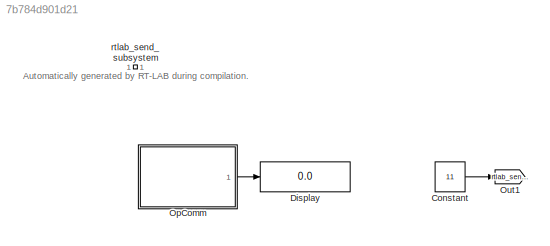
MODEL slx_7b784d901d21
KIND model
CONFIG AbsTol = auto
CONFIG EnableMultiTasking = off
CONFIG FixedStep = 0.001
CONFIG MaxStep = auto
CONFIG MinStep = auto
CONFIG RelTol = 1e-3
CONFIG SampleTimeConstraint = Unconstrained
CONFIG SolverName = ode4
CONFIG StartTime = 0.0
CONFIG StopTime = inf
WORKSPACE source: MATLAB code (in-file)
WORKSPACE code: addpath src\model
WORKSPACE code: addpath src\utils
WORKSPACE utils = StateMachineUtils
WORKSPACE utils = utils.loadEventsInAds('resources/tct/ALLEVENT.ADS')
WORKSPACE utils = utils.loadDisabledEventsInPdt('resources/tct/supervisor1/DATA_SIMSUP1_MG1.PDT')
WORKSPACE utils = utils.loadTransitionsInAds('resources/tct/supervisor1/SIMSUP1_MG1.ADS')
WORKSPACE encodedStates = StateEncoder.encode(utils.statesArray)
WORKSPACE transitions = utils.transitions
WORKSPACE allEvents = utils.eventsArray
BLOCK [Constant] Constant
  Value = 11
BLOCK [Display] Display
  Decimation = 1
  Ports = [1]
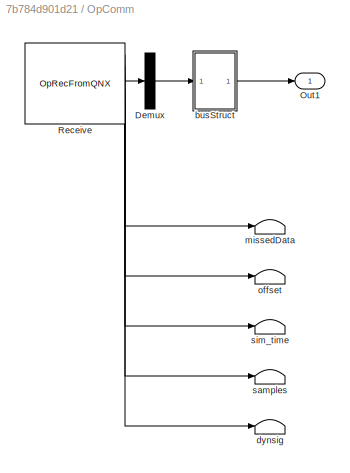
BLOCK [SubSystem] OpComm
  Ports = [0, 1]
  RequestExecContextInheritance = off
BLOCK [Demux] OpComm/Demux
  Outputs = [1]
  Ports = [1, 1]
BLOCK [Outport] OpComm/Out1
BLOCK [Reference] OpComm/Receive  REF=opal_lib/Communication/OpRecFromQNX
  Ports = [0, 6]
  SourceBlock = opal_lib/Communication/OpRecFromQNX
  SourceType = OPAL Receive Icon
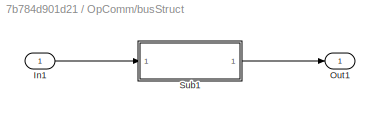
BLOCK [SubSystem] OpComm/busStruct
  Ports = [1, 1]
  RequestExecContextInheritance = off
BLOCK [Inport] OpComm/busStruct/In1
BLOCK [Outport] OpComm/busStruct/Out1
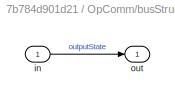
BLOCK [SubSystem] OpComm/busStruct/Sub1
  Ports = [1, 1]
  RequestExecContextInheritance = off
BLOCK [Inport] OpComm/busStruct/Sub1/in
BLOCK [Outport] OpComm/busStruct/Sub1/out
BLOCK [Terminator] OpComm/dynsig
BLOCK [Terminator] OpComm/missedData
BLOCK [Terminator] OpComm/offset
BLOCK [Terminator] OpComm/samples
BLOCK [Terminator] OpComm/sim_time
BLOCK [Goto] Out1
  GotoTag = rtlab_send_1
  TagVisibility = global
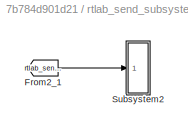
BLOCK [SubSystem] rtlab_send_subsystem
  Ports = []
  Priority = -100
  RequestExecContextInheritance = off
BLOCK [From] rtlab_send_subsystem/From2_1
  GotoTag = rtlab_send_1
  TagVisibility = global
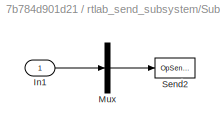
BLOCK [SubSystem] rtlab_send_subsystem/Subsystem2
  Ports = [1]
  RequestExecContextInheritance = off
BLOCK [Inport] rtlab_send_subsystem/Subsystem2/In1
  PortDimensions = 1
BLOCK [Mux] rtlab_send_subsystem/Subsystem2/Mux
  Inputs = 1
  Ports = [1, 1]
BLOCK [Reference] rtlab_send_subsystem/Subsystem2/Send2  REF=opal_lib/Communication/OpSendPar
ToQNX
  Ports = [1]
  SourceBlock = opal_lib/Communication/OpSendPar\nToQNX
  SourceType = OPAL Send Icon
ANNOTATION (root): Automatically generated by RT-LAB during compilation.
LINE Constant:1 -> Out1:1
LINE OpComm/Demux:1 -> OpComm/busStruct:1
LINE OpComm/Receive:1 -> OpComm/Demux:1
LINE OpComm/Receive:2 -> OpComm/missedData:1
LINE OpComm/Receive:3 -> OpComm/offset:1
LINE OpComm/Receive:4 -> OpComm/sim_time:1
LINE OpComm/Receive:5 -> OpComm/samples:1
LINE OpComm/Receive:6 -> OpComm/dynsig:1
LINE OpComm/busStruct/In1:1 -> OpComm/busStruct/Sub1:1
LINE OpComm/busStruct/Sub1/in:1 -> OpComm/busStruct/Sub1/out:1
LINE OpComm/busStruct/Sub1:1 -> OpComm/busStruct/Out1:1
LINE OpComm/busStruct:1 -> OpComm/Out1:1
LINE OpComm:1 -> Display:1
LINE rtlab_send_subsystem/From2_1:1 -> rtlab_send_subsystem/Subsystem2:1
LINE rtlab_send_subsystem/Subsystem2/In1:1 -> rtlab_send_subsystem/Subsystem2/Mux:1
LINE rtlab_send_subsystem/Subsystem2/Mux:1 -> rtlab_send_subsystem/Subsystem2/Send2:1
